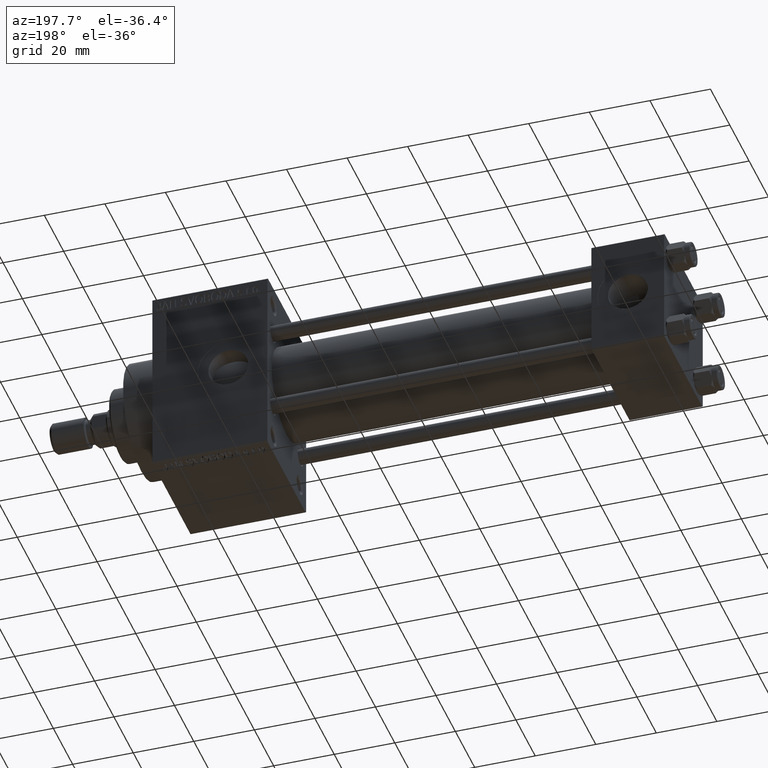
[diagram: clean part render]
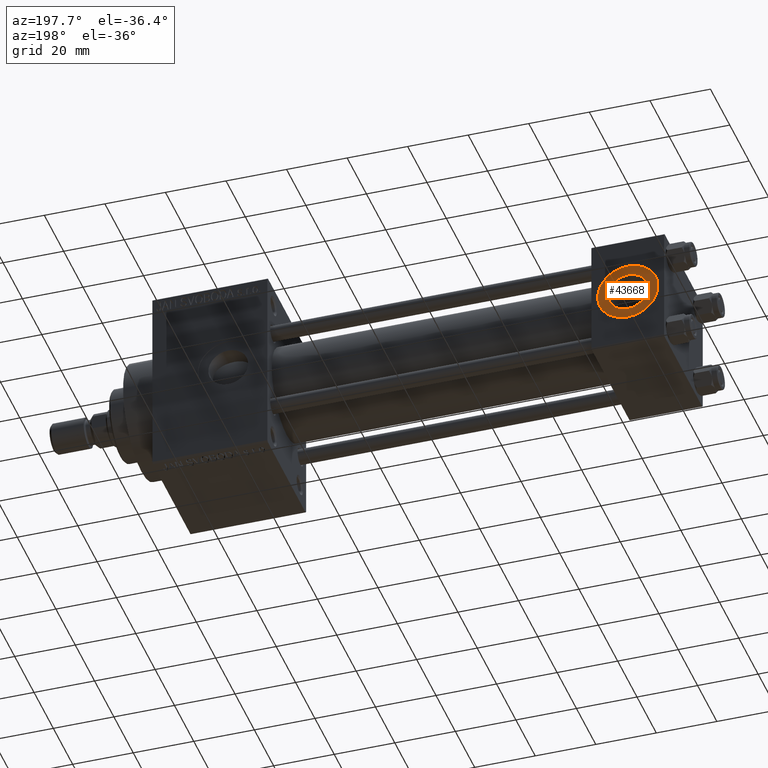
[diagram: same view with one face highlighted and labeled with its STEP entity id]
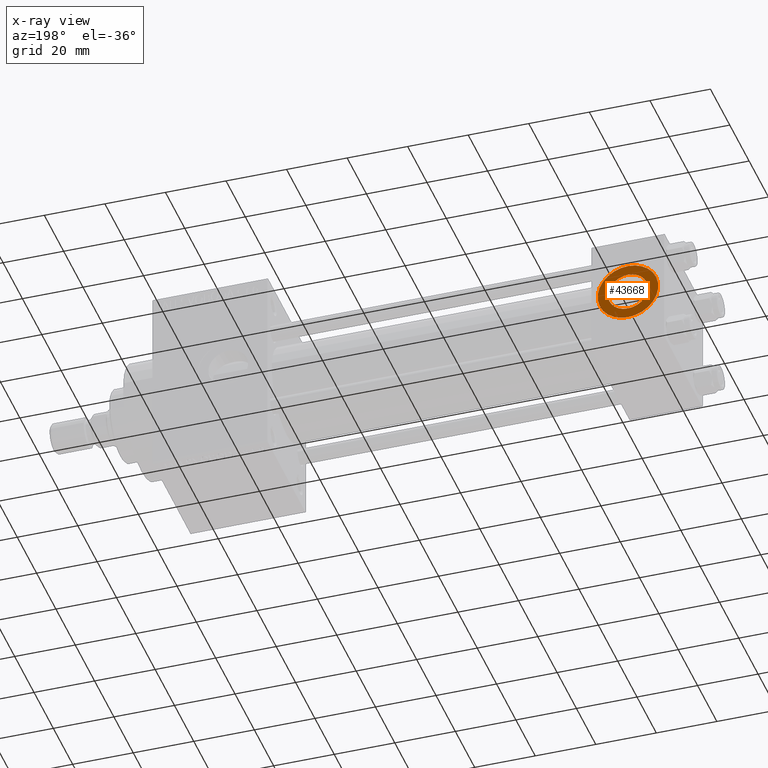
[diagram: x-ray of the same camera — body ghosted, the highlighted face saturated]
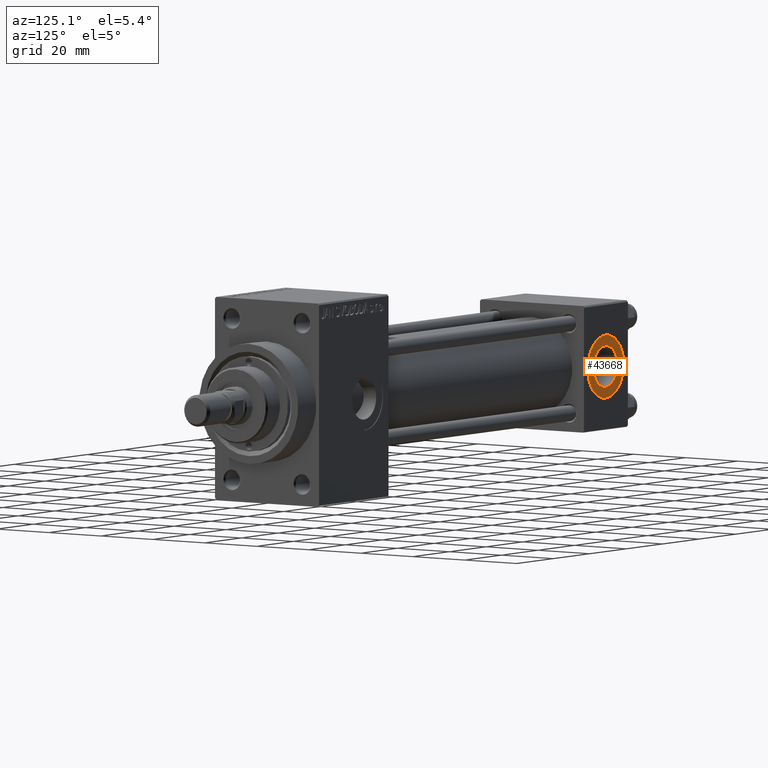
[diagram: same view with one face highlighted and labeled with its STEP entity id]
A machine part, auxiliary view. The second image highlights one B-rep face of the part: STEP entity #43668.
The next image is the same camera in x-ray: the body ghosted, the highlighted face saturated — about 0% of this face is hidden behind the body in this view.
A second angle (auxiliary view) of the same face is appended — the face is thin or edge-on in the first view.
In plain terms, the highlighted planar face has unit normal (0, 1, 0).
Its self-contained STEP definition (entity closure, byte-faithful):
#2314 = CARTESIAN_POINT ( 'NONE',  ( 12.00000000000000000, 19.80000000000000071, 6.579999999999998295 ) ) ;
#3510 = CARTESIAN_POINT ( 'NONE',  ( 12.00000000000000178, 19.80000000000000071, -10.00000000000000000 ) ) ;
#5046 = AXIS2_PLACEMENT_3D ( 'NONE', #29485, #14495, #18733 ) ;
#8975 = DIRECTION ( 'NONE',  ( 0.000000000000000000, 0.000000000000000000, 1.000000000000000000 ) ) ;
#9218 = CARTESIAN_POINT ( 'NONE',  ( 12.00000000000000000, 19.80000000000000071, 0.000000000000000000 ) ) ;
#13711 = VERTEX_POINT ( 'NONE', #2314 ) ;
#14495 = DIRECTION ( 'NONE',  ( 0.000000000000000000, 1.000000000000000000, 0.000000000000000000 ) ) ;
#15244 = DIRECTION ( 'NONE',  ( 0.000000000000000000, 1.000000000000000000, 0.000000000000000000 ) ) ;
#16780 = CIRCLE ( 'NONE', #47897, 10.00000000000000000 ) ;
#18733 = DIRECTION ( 'NONE',  ( 0.000000000000000000, -0.000000000000000000, 1.000000000000000000 ) ) ;
#19517 = CIRCLE ( 'NONE', #21921, 6.579999999999998295 ) ;
#19853 = CIRCLE ( 'NONE', #44635, 6.579999999999998295 ) ;
#19877 = CARTESIAN_POINT ( 'NONE',  ( 12.00000000000000000, 19.80000000000000071, 10.00000000000000000 ) ) ;
#21918 = AXIS2_PLACEMENT_3D ( 'NONE', #27453, #34701, #33792 ) ;
#21921 = AXIS2_PLACEMENT_3D ( 'NONE', #38959, #15244, #23477 ) ;
#23477 = DIRECTION ( 'NONE',  ( 0.000000000000000000, 0.000000000000000000, 1.000000000000000000 ) ) ;
#23964 = DIRECTION ( 'NONE',  ( 0.000000000000000000, 0.000000000000000000, 1.000000000000000000 ) ) ;
#24580 = EDGE_CURVE ( 'NONE', #13711, #29002, #19853, .T. ) ;
#26940 = EDGE_CURVE ( 'NONE', #31367, #34758, #16780, .T. ) ;
#27453 = CARTESIAN_POINT ( 'NONE',  ( 12.00000000000000000, 19.80000000000000071, 0.000000000000000000 ) ) ;
#28986 = ORIENTED_EDGE ( 'NONE', *, *, #45116, .F. ) ;
#29002 = VERTEX_POINT ( 'NONE', #37599 ) ;
#29485 = CARTESIAN_POINT ( 'NONE',  ( 12.00000000000000000, 19.80000000000000071, 0.000000000000000000 ) ) ;
#29973 = FACE_BOUND ( 'NONE', #34627, .T. ) ;
#31367 = VERTEX_POINT ( 'NONE', #3510 ) ;
#31866 = ORIENTED_EDGE ( 'NONE', *, *, #24580, .F. ) ;
#33121 = CIRCLE ( 'NONE', #21918, 10.00000000000000000 ) ;
#33792 = DIRECTION ( 'NONE',  ( 0.000000000000000000, 0.000000000000000000, 1.000000000000000000 ) ) ;
#34627 = EDGE_LOOP ( 'NONE', ( #31866, #28986 ) ) ;
#34701 = DIRECTION ( 'NONE',  ( 0.000000000000000000, 1.000000000000000000, 0.000000000000000000 ) ) ;
#34758 = VERTEX_POINT ( 'NONE', #19877 ) ;
#35649 = EDGE_LOOP ( 'NONE', ( #41657, #38621 ) ) ;
#37599 = CARTESIAN_POINT ( 'NONE',  ( 12.00000000000000000, 19.80000000000000071, -6.579999999999998295 ) ) ;
#38621 = ORIENTED_EDGE ( 'NONE', *, *, #26940, .T. ) ;
#38959 = CARTESIAN_POINT ( 'NONE',  ( 12.00000000000000000, 19.80000000000000071, 0.000000000000000000 ) ) ;
#41657 = ORIENTED_EDGE ( 'NONE', *, *, #48552, .T. ) ;
#41726 = FACE_OUTER_BOUND ( 'NONE', #35649, .T. ) ;
#43668 = ADVANCED_FACE ( 'NONE', ( #29973, #41726 ), #48471, .T. ) ;
#43705 = DIRECTION ( 'NONE',  ( 0.000000000000000000, 1.000000000000000000, 0.000000000000000000 ) ) ;
#44635 = AXIS2_PLACEMENT_3D ( 'NONE', #9218, #43705, #23964 ) ;
#45116 = EDGE_CURVE ( 'NONE', #29002, #13711, #19517, .T. ) ;
#47191 = DIRECTION ( 'NONE',  ( 0.000000000000000000, 1.000000000000000000, 0.000000000000000000 ) ) ;
#47438 = CARTESIAN_POINT ( 'NONE',  ( 12.00000000000000000, 19.80000000000000071, 0.000000000000000000 ) ) ;
#47897 = AXIS2_PLACEMENT_3D ( 'NONE', #47438, #47191, #8975 ) ;
#48471 = PLANE ( 'NONE',  #5046 ) ;
#48552 = EDGE_CURVE ( 'NONE', #34758, #31367, #33121, .T. ) ;